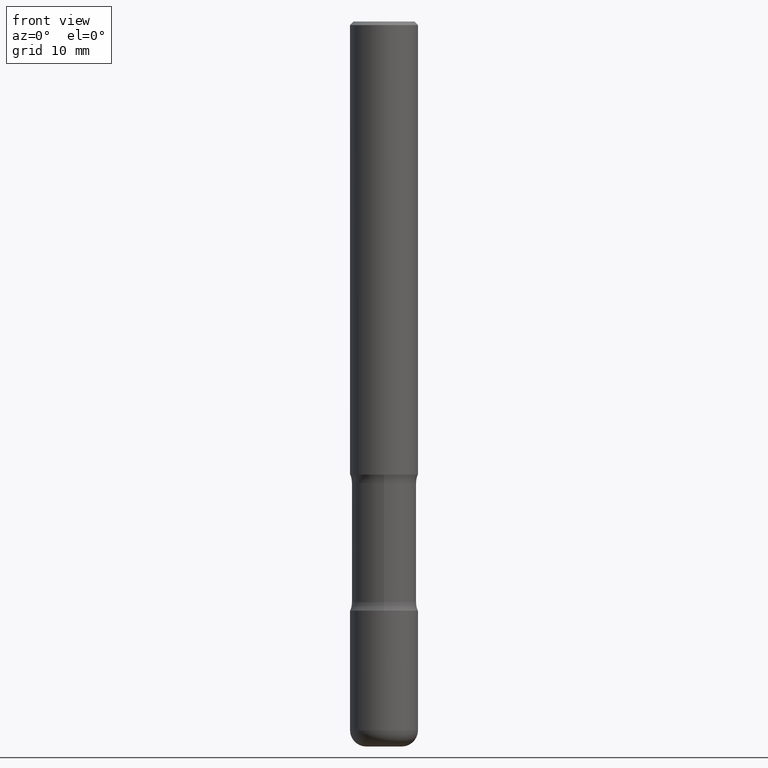
[diagram: clean part render]
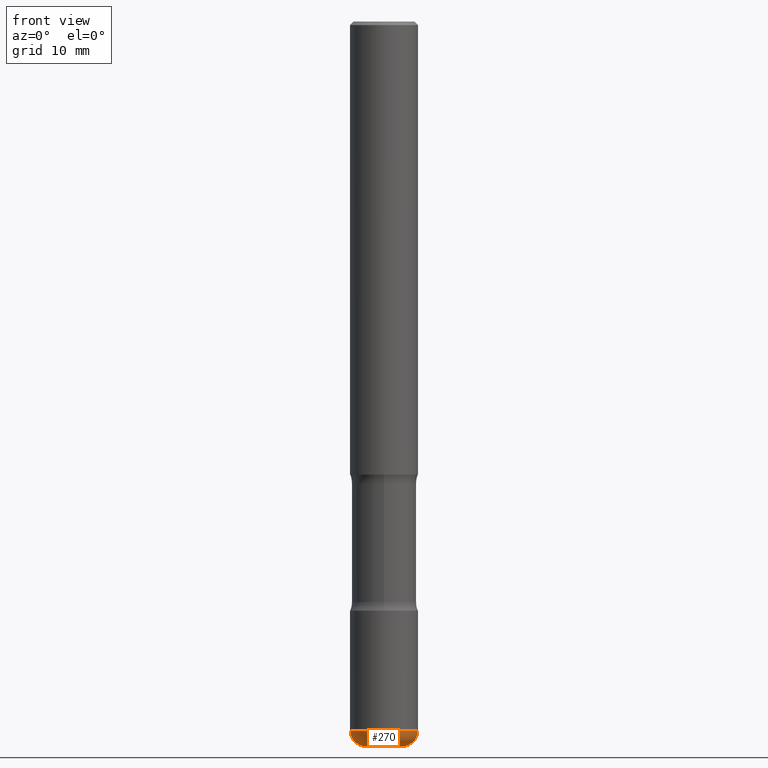
[diagram: same view with one face highlighted and labeled with its STEP entity id]
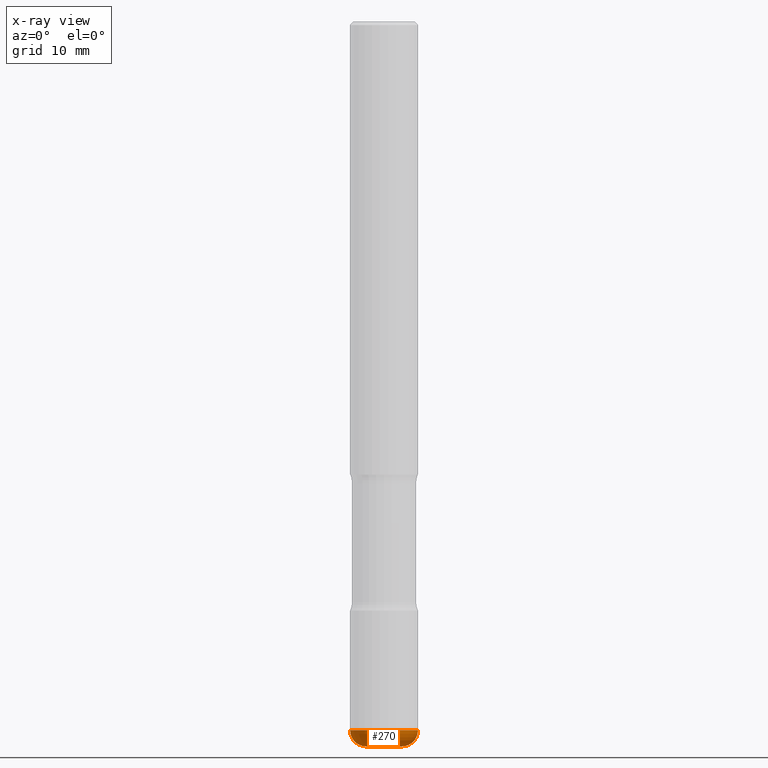
[diagram: x-ray of the same camera — body ghosted, the highlighted face saturated]
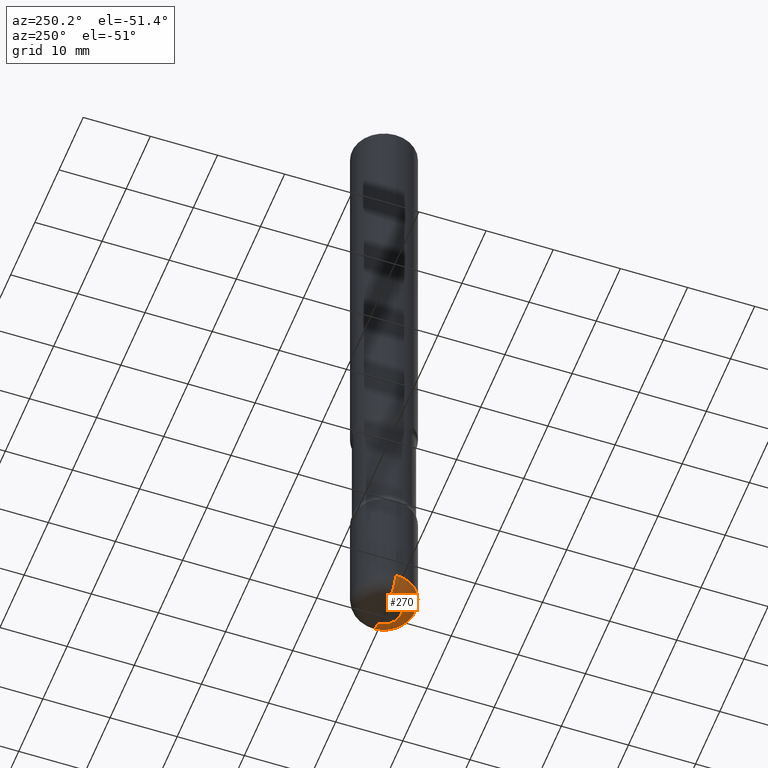
[diagram: same view with one face highlighted and labeled with its STEP entity id]
A machine part, front view. The second image highlights one B-rep face of the part: STEP entity #270.
The next image is the same camera in x-ray: the body ghosted, the highlighted face saturated — about 0% of this face is hidden behind the body in this view.
A second angle (auxiliary view) of the same face is appended — the face is thin or edge-on in the first view.
In plain terms, the highlighted toroidal blend (fillet) surface has major radius 2.4765 mm and minor (blend) radius 2.286 mm.
Its self-contained STEP definition (entity closure, byte-faithful):
#15 = CARTESIAN_POINT ( 'NONE',  ( -0.09750000000000015599, -1.295891286751060038E-14, -3.910000000000000142 ) ) ;
#27 = DIRECTION ( 'NONE',  ( 1.000000000000000000, -6.982962677686276966E-15, 0.000000000000000000 ) ) ;
#45 = DIRECTION ( 'NONE',  ( -2.445468806185136597E-29, 3.491481338843145583E-15, 1.000000000000000000 ) ) ;
#72 = VERTEX_POINT ( 'NONE', #93 ) ;
#88 = AXIS2_PLACEMENT_3D ( 'NONE', #466, #45, #216 ) ;
#93 = CARTESIAN_POINT ( 'NONE',  ( 0.09750000000000016986, -1.464676421644699712E-14, -4.000000000000000888 ) ) ;
#114 = CARTESIAN_POINT ( 'NONE',  ( 9.561783032183883600E-29, -1.365169203487670064E-14, -3.910000000000000142 ) ) ;
#130 = DIRECTION ( 'NONE',  ( -2.445468806185136597E-29, 3.491481338843145583E-15, 1.000000000000000000 ) ) ;
#146 = EDGE_CURVE ( 'NONE', #509, #192, #310, .T. ) ;
#155 = EDGE_LOOP ( 'NONE', ( #528, #159, #318, #442 ) ) ;
#159 = ORIENTED_EDGE ( 'NONE', *, *, #432, .T. ) ;
#166 = DIRECTION ( 'NONE',  ( -6.982962677686266711E-15, -1.000000000000000000, 3.491481338843145583E-15 ) ) ;
#176 = DIRECTION ( 'NONE',  ( 1.000000000000000000, -6.982962677686269077E-15, 0.000000000000000000 ) ) ;
#178 = AXIS2_PLACEMENT_3D ( 'NONE', #307, #130, #176 ) ;
#192 = VERTEX_POINT ( 'NONE', #452 ) ;
#216 = DIRECTION ( 'NONE',  ( 1.000000000000000000, -6.982962677686265922E-15, 0.000000000000000000 ) ) ;
#238 = AXIS2_PLACEMENT_3D ( 'NONE', #114, #334, #337 ) ;
#263 = EDGE_CURVE ( 'NONE', #72, #544, #530, .T. ) ;
#270 = ADVANCED_FACE ( 'NONE', ( #415 ), #455, .T. ) ;
#281 = AXIS2_PLACEMENT_3D ( 'NONE', #329, #166, #27 ) ;
#307 = CARTESIAN_POINT ( 'NONE',  ( 9.561783032183883600E-29, -1.365169203487670064E-14, -3.910000000000000142 ) ) ;
#310 = CIRCLE ( 'NONE', #341, 0.09000000000000016320 ) ;
#314 = CARTESIAN_POINT ( 'NONE',  ( -0.09750000000000016986, -1.279628529666649585E-14, -4.000000000000000888 ) ) ;
#318 = ORIENTED_EDGE ( 'NONE', *, *, #263, .T. ) ;
#329 = CARTESIAN_POINT ( 'NONE',  ( 0.09750000000000015599, -1.433253089595111070E-14, -3.910000000000000142 ) ) ;
#334 = DIRECTION ( 'NONE',  ( -2.445468806185136597E-29, 3.491481338843145583E-15, 1.000000000000000000 ) ) ;
#337 = DIRECTION ( 'NONE',  ( 1.000000000000000000, -6.982962677686271444E-15, 4.883557194083115143E-29 ) ) ;
#341 = AXIS2_PLACEMENT_3D ( 'NONE', #15, #463, #553 ) ;
#371 = CARTESIAN_POINT ( 'NONE',  ( 0.1875000000000002220, -1.496099753694287723E-14, -3.910000000000000142 ) ) ;
#386 = EDGE_CURVE ( 'NONE', #192, #544, #523, .T. ) ;
#415 = FACE_OUTER_BOUND ( 'NONE', #155, .T. ) ;
#432 = EDGE_CURVE ( 'NONE', #509, #72, #480, .T. ) ;
#442 = ORIENTED_EDGE ( 'NONE', *, *, #386, .F. ) ;
#452 = CARTESIAN_POINT ( 'NONE',  ( -0.1875000000000002220, -1.231942440532651122E-14, -3.910000000000000142 ) ) ;
#455 = TOROIDAL_SURFACE ( 'NONE', #238, 0.09750000000000015599, 0.09000000000000017708 ) ;
#463 = DIRECTION ( 'NONE',  ( 7.105427357601001859E-15, 1.000000000000000000, -3.491481338843145583E-15 ) ) ;
#466 = CARTESIAN_POINT ( 'NONE',  ( 9.781875224740547508E-29, -1.396592535537258391E-14, -4.000000000000000888 ) ) ;
#480 = CIRCLE ( 'NONE', #88, 0.09750000000000016986 ) ;
#509 = VERTEX_POINT ( 'NONE', #314 ) ;
#523 = CIRCLE ( 'NONE', #178, 0.1875000000000001110 ) ;
#528 = ORIENTED_EDGE ( 'NONE', *, *, #146, .F. ) ;
#530 = CIRCLE ( 'NONE', #281, 0.09000000000000016320 ) ;
#544 = VERTEX_POINT ( 'NONE', #371 ) ;
#553 = DIRECTION ( 'NONE',  ( -1.000000000000000000, 7.105427357600999492E-15, 0.000000000000000000 ) ) ;